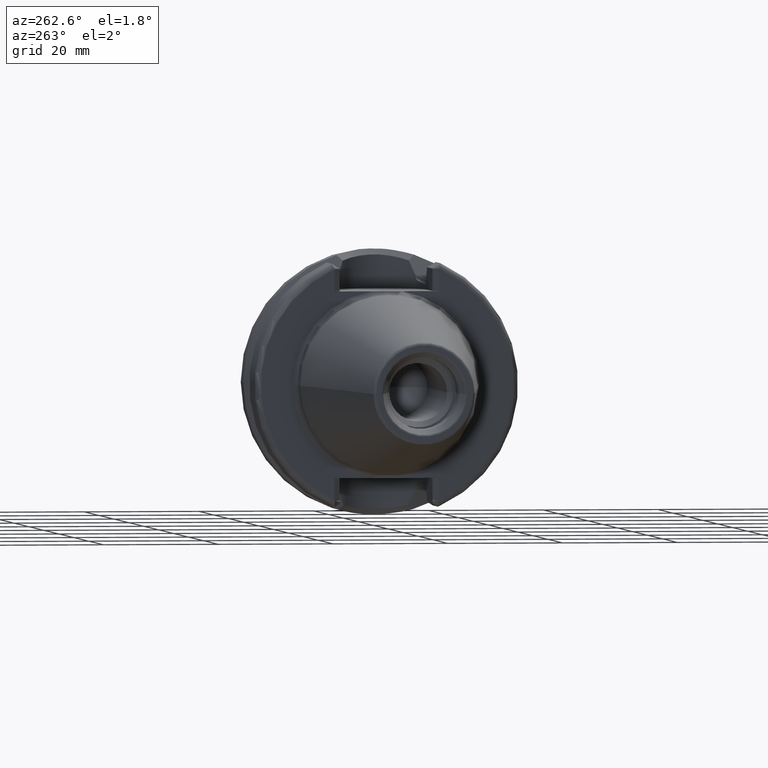
[diagram: clean part render]
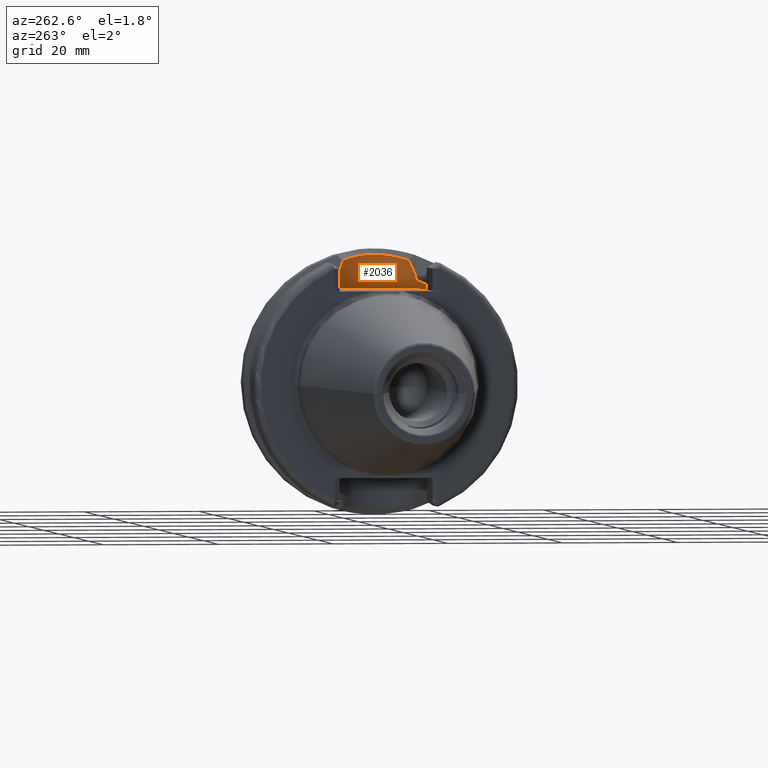
[diagram: same view with one face highlighted and labeled with its STEP entity id]
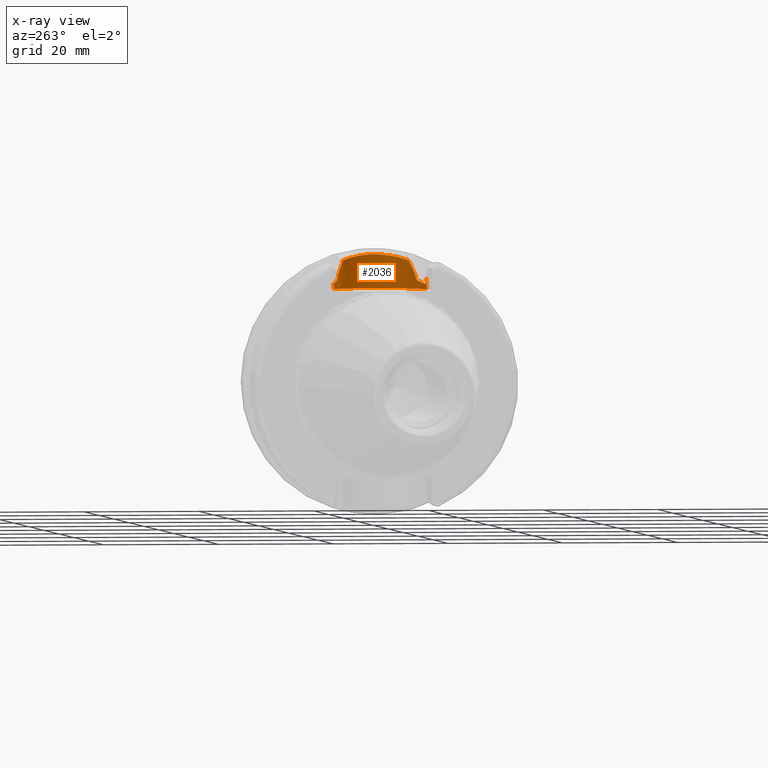
[diagram: x-ray of the same camera — body ghosted, the highlighted face saturated]
A machine part, auxiliary view. The second image highlights one B-rep face of the part: STEP entity #2036.
The next image is the same camera in x-ray: the body ghosted, the highlighted face saturated — about 0% of this face is hidden behind the body in this view.
In plain terms, the highlighted cylindrical surface (partial cylindrical patch) has radius 8.095 mm, axis along (0, 0, 1).
Its self-contained STEP definition (entity closure, byte-faithful):
#426=CARTESIAN_POINT('',(1.48875E1,7.183137806697E0,1.745474595203E1));
#427=CARTESIAN_POINT('',(1.461036501125E1,7.327142609799E0,1.739548376922E1));
#428=CARTESIAN_POINT('',(1.404920492439E1,7.578313334037E0,1.728803651447E1));
#429=CARTESIAN_POINT('',(1.318480954598E1,7.853460451226E0,1.716416337693E1));
#430=CARTESIAN_POINT('',(1.260448853217E1,7.969632667405E0,1.711001901788E1));
#431=CARTESIAN_POINT('',(1.23125E1,8.011817443627E0,1.709024301319E1));
#445=CARTESIAN_POINT('',(1.23125E1,-8.011817443627E0,1.709024301319E1));
#446=CARTESIAN_POINT('',(1.260448853217E1,-7.969632667405E0,1.711001901788E1));
#447=CARTESIAN_POINT('',(1.318480954598E1,-7.853460451226E0,1.716416337693E1));
#448=CARTESIAN_POINT('',(1.404920492439E1,-7.578313334037E0,1.728803651447E1));
#449=CARTESIAN_POINT('',(1.461036501125E1,-7.327142609799E0,1.739548376922E1));
#450=CARTESIAN_POINT('',(1.48875E1,-7.183137806697E0,1.745474595203E1));
#462=CARTESIAN_POINT('',(1.15625E1,-8.084736776791E0,1.788232804335E1));
#463=CARTESIAN_POINT('',(1.15625E1,-8.084736776791E0,1.781359730062E1));
#464=CARTESIAN_POINT('',(1.157743606483E1,-8.084008713788E0,1.768050385507E1));
#465=CARTESIAN_POINT('',(1.164702451808E1,-8.080196327678E0,1.748544180816E1));
#466=CARTESIAN_POINT('',(1.175695528065E1,-8.072931861565E0,1.732053584298E1));
#467=CARTESIAN_POINT('',(1.190535493158E1,-8.060719513235E0,1.718877876759E1));
#468=CARTESIAN_POINT('',(1.208874148617E1,-8.041810725138E0,1.710274000837E1));
#469=CARTESIAN_POINT('',(1.223427404262E1,-8.023119067298E0,1.708494487053E1));
#470=CARTESIAN_POINT('',(1.23125E1,-8.011817443627E0,1.709024301319E1));
#472=DIRECTION('',(0.E0,0.E0,1.E0));
#473=VECTOR('',#472,5.930451084079E-2);
#474=CARTESIAN_POINT('',(1.15625E1,-8.084736776791E0,1.788232804335E1));
#475=LINE('',#474,#473);
#476=CARTESIAN_POINT('',(1.1155E1,-8.095E0,1.870865212813E1));
#477=CARTESIAN_POINT('',(1.122320355344E1,-8.095E0,1.857993600428E1));
#478=CARTESIAN_POINT('',(1.135932539469E1,-8.093276332983E0,1.832336899895E1));
#479=CARTESIAN_POINT('',(1.149487170181E1,-8.088145487832E0,1.806857530355E1));
#480=CARTESIAN_POINT('',(1.15625E1,-8.084736776791E0,1.794163255419E1));
#482=DIRECTION('',(-2.499317727300E-14,0.E0,1.E0));
#483=VECTOR('',#482,2.558652128134E0);
#484=CARTESIAN_POINT('',(1.1155E1,-8.095E0,1.615E1));
#485=LINE('',#484,#483);
#486=CARTESIAN_POINT('',(1.15625E1,8.084736776791E0,1.794163255419E1));
#487=CARTESIAN_POINT('',(1.149487499855E1,8.088145321664E0,1.806856911534E1));
#488=CARTESIAN_POINT('',(1.135933197530E1,8.093276167010E0,1.832335661175E1));
#489=CARTESIAN_POINT('',(1.122320683725E1,8.095E0,1.857992980697E1));
#490=CARTESIAN_POINT('',(1.1155E1,8.095E0,1.870865212813E1));
#492=DIRECTION('',(0.E0,0.E0,1.E0));
#493=VECTOR('',#492,5.930451084079E-2);
#494=CARTESIAN_POINT('',(1.15625E1,8.084736776791E0,1.788232804335E1));
#495=LINE('',#494,#493);
#496=CARTESIAN_POINT('',(1.23125E1,8.011817443627E0,1.709024301319E1));
#497=CARTESIAN_POINT('',(1.223412033661E1,8.023141273833E0,1.708493446022E1));
#498=CARTESIAN_POINT('',(1.208831797670E1,8.041863754075E0,1.710280413489E1));
#499=CARTESIAN_POINT('',(1.190448533030E1,8.060802307436E0,1.718929563694E1));
#500=CARTESIAN_POINT('',(1.175607673362E1,8.072995940587E0,1.732154273478E1));
#501=CARTESIAN_POINT('',(1.164652640216E1,8.080224902242E0,1.748652481923E1));
#502=CARTESIAN_POINT('',(1.157735932460E1,8.084012208743E0,1.768105664530E1));
#503=CARTESIAN_POINT('',(1.15625E1,8.084736776791E0,1.781380327923E1));
#504=CARTESIAN_POINT('',(1.15625E1,8.084736776791E0,1.788232804335E1));
#506=CARTESIAN_POINT('',(1.56375E1,6.740639342822E0,1.843107176075E1));
#507=CARTESIAN_POINT('',(1.56375E1,6.740639342822E0,1.835223565973E1));
#508=CARTESIAN_POINT('',(1.561716943487E1,6.754255410016E0,1.819368091113E1));
#509=CARTESIAN_POINT('',(1.551365732971E1,6.821981327071E0,1.793606136907E1));
#510=CARTESIAN_POINT('',(1.534724837083E1,6.926179270024E0,1.770995100299E1));
#511=CARTESIAN_POINT('',(1.512702377767E1,7.055163449183E0,1.753487145852E1));
#512=CARTESIAN_POINT('',(1.497068250850E1,7.139914535566E0,1.747253359064E1));
#513=CARTESIAN_POINT('',(1.48875E1,7.183137806697E0,1.745474595203E1));
#515=DIRECTION('',(0.E0,-1.543465448134E-14,1.E0));
#516=VECTOR('',#515,5.754443164075E-2);
#517=CARTESIAN_POINT('',(1.56375E1,6.740639342822E0,1.843107176075E1));
#518=LINE('',#517,#516);
#519=CARTESIAN_POINT('',(1.685762423454E1,5.745354805374E0,2.102137764954E1));
#520=CARTESIAN_POINT('',(1.667158652396E1,5.930008876853E0,2.063686487213E1));
#521=CARTESIAN_POINT('',(1.628166811893E1,6.281182202369E0,1.982963416011E1));
#522=CARTESIAN_POINT('',(1.585764706705E1,6.594242365047E0,1.894784734616E1));
#523=CARTESIAN_POINT('',(1.56375E1,6.740639342822E0,1.848861619239E1));
#525=CARTESIAN_POINT('',(1.685762423454E1,5.745354805374E0,2.102137764954E1));
#526=CARTESIAN_POINT('',(1.697779770550E1,5.626136088152E0,2.106252297309E1));
#527=CARTESIAN_POINT('',(1.743755666385E1,5.140082156779E0,2.122428465158E1));
#528=CARTESIAN_POINT('',(1.812816032758E1,4.200121990197E0,2.149450952646E1));
#529=CARTESIAN_POINT('',(1.877276778562E1,2.867032923798E0,2.177159791335E1));
#530=CARTESIAN_POINT('',(1.916083388966E1,1.458814329773E0,2.194831858969E1));
#531=CARTESIAN_POINT('',(1.929118281632E1,3.703622594747E-2,2.200926032693E1));
#532=CARTESIAN_POINT('',(1.917392581487E1,-1.384592569817E0,2.195440356236E1));
#533=CARTESIAN_POINT('',(1.879919831505E1,-2.795658581172E0,2.178340212711E1));
#534=CARTESIAN_POINT('',(1.816770202464E1,-4.133576223624E0,2.151091403437E1));
#535=CARTESIAN_POINT('',(1.747159732381E1,-5.100439615657E0,2.123687604330E1));
#536=CARTESIAN_POINT('',(1.699614287571E1,-5.607914957456E0,2.106882289373E1));
#537=CARTESIAN_POINT('',(1.685763265114E1,-5.745346451357E0,2.102139504543E1));
#539=CARTESIAN_POINT('',(1.56375E1,-6.740639342822E0,1.848861619239E1));
#540=CARTESIAN_POINT('',(1.585767247034E1,-6.594225471952E0,1.894790033793E1));
#541=CARTESIAN_POINT('',(1.628171976104E1,-6.281140526994E0,1.982974129959E1));
#542=CARTESIAN_POINT('',(1.667161664884E1,-5.929979516978E0,2.063692715611E1));
#543=CARTESIAN_POINT('',(1.685763265114E1,-5.745346451357E0,2.102139504543E1));
#545=DIRECTION('',(0.E0,0.E0,1.E0));
#546=VECTOR('',#545,5.754443164074E-2);
#547=CARTESIAN_POINT('',(1.56375E1,-6.740639342822E0,1.843107176075E1));
#548=LINE('',#547,#546);
#549=CARTESIAN_POINT('',(1.48875E1,-7.183137806697E0,1.745474595203E1));
#550=CARTESIAN_POINT('',(1.497069018136E1,-7.139910548601E0,1.747253523139E1));
#551=CARTESIAN_POINT('',(1.512704810528E1,-7.055150292263E0,1.753488060805E1));
#552=CARTESIAN_POINT('',(1.534731396602E1,-6.926140003427E0,1.771001150802E1));
#553=CARTESIAN_POINT('',(1.551373210350E1,-6.821933350112E0,1.793618747596E1));
#554=CARTESIAN_POINT('',(1.561720305768E1,-6.754232932078E0,1.819382523887E1));
#555=CARTESIAN_POINT('',(1.56375E1,-6.740639342822E0,1.835229604119E1));
#556=CARTESIAN_POINT('',(1.56375E1,-6.740639342822E0,1.843107176075E1));
#562=CARTESIAN_POINT('',(1.1155E1,-8.095E0,1.870865212813E1));
#648=CARTESIAN_POINT('',(1.1155E1,8.095E0,1.870865212813E1));
#654=DIRECTION('',(0.E0,0.E0,1.E0));
#655=VECTOR('',#654,2.558652128134E0);
#656=CARTESIAN_POINT('',(1.1155E1,8.095E0,1.615E1));
#657=LINE('',#656,#655);
#682=CARTESIAN_POINT('',(1.1155E1,0.E0,1.615E1));
#683=DIRECTION('',(0.E0,0.E0,1.E0));
#684=DIRECTION('',(0.E0,-1.E0,0.E0));
#685=AXIS2_PLACEMENT_3D('',#682,#683,#684);
#1221=CARTESIAN_POINT('',(1.15625E1,-8.084736776791E0,1.788232804335E1));
#1223=VERTEX_POINT('',#1221);
#1224=CARTESIAN_POINT('',(1.15625E1,8.084736776791E0,1.788232804335E1));
#1226=VERTEX_POINT('',#1224);
#1229=CARTESIAN_POINT('',(1.23125E1,-8.011817443627E0,1.709024301319E1));
#1231=VERTEX_POINT('',#1229);
#1232=CARTESIAN_POINT('',(1.23125E1,8.011817443627E0,1.709024301319E1));
#1234=VERTEX_POINT('',#1232);
#1236=CARTESIAN_POINT('',(1.56375E1,-6.740639342822E0,1.843107176075E1));
#1238=VERTEX_POINT('',#1236);
#1241=CARTESIAN_POINT('',(1.48875E1,-7.183137806697E0,1.745474595203E1));
#1243=VERTEX_POINT('',#1241);
#1244=CARTESIAN_POINT('',(1.48875E1,7.183137806697E0,1.745474595203E1));
#1246=VERTEX_POINT('',#1244);
#1249=CARTESIAN_POINT('',(1.56375E1,6.740639342822E0,1.843107176075E1));
#1251=VERTEX_POINT('',#1249);
#1252=CARTESIAN_POINT('',(1.56375E1,6.740639342822E0,1.848861619239E1));
#1254=VERTEX_POINT('',#1252);
#1257=CARTESIAN_POINT('',(1.56375E1,-6.740639342822E0,1.848861619239E1));
#1259=VERTEX_POINT('',#1257);
#1261=CARTESIAN_POINT('',(1.15625E1,8.084736776791E0,1.794163255419E1));
#1263=VERTEX_POINT('',#1261);
#1264=CARTESIAN_POINT('',(1.15625E1,-8.084736776791E0,1.794163255419E1));
#1266=VERTEX_POINT('',#1264);
#1350=CARTESIAN_POINT('',(1.1155E1,-8.095E0,1.615E1));
#1351=CARTESIAN_POINT('',(1.1155E1,8.095E0,1.615E1));
#1352=VERTEX_POINT('',#1350);
#1353=VERTEX_POINT('',#1351);
#1366=VERTEX_POINT('',#648);
#1369=VERTEX_POINT('',#562);
#1370=VERTEX_POINT('',#543);
#1371=VERTEX_POINT('',#519);
#2005=CARTESIAN_POINT('',(1.1155E1,0.E0,1.615E1));
#2006=DIRECTION('',(0.E0,0.E0,1.E0));
#2007=DIRECTION('',(1.E0,0.E0,0.E0));
#2008=AXIS2_PLACEMENT_3D('',#2005,#2006,#2007);
#2009=CYLINDRICAL_SURFACE('',#2008,8.095E0);
#2010=ORIENTED_EDGE('',*,*,#1945,.F.);
#2011=ORIENTED_EDGE('',*,*,#1974,.F.);
#2012=ORIENTED_EDGE('',*,*,#1998,.T.);
#2013=ORIENTED_EDGE('',*,*,#1738,.F.);
#2015=ORIENTED_EDGE('',*,*,#2014,.F.);
#2017=ORIENTED_EDGE('',*,*,#2016,.T.);
#2019=ORIENTED_EDGE('',*,*,#2018,.T.);
#2020=ORIENTED_EDGE('',*,*,#1710,.F.);
#2021=ORIENTED_EDGE('',*,*,#1987,.F.);
#2022=ORIENTED_EDGE('',*,*,#1960,.F.);
#2023=ORIENTED_EDGE('',*,*,#1932,.F.);
#2024=ORIENTED_EDGE('',*,*,#1904,.F.);
#2025=ORIENTED_EDGE('',*,*,#1875,.T.);
#2027=ORIENTED_EDGE('',*,*,#2026,.F.);
#2029=ORIENTED_EDGE('',*,*,#2028,.T.);
#2031=ORIENTED_EDGE('',*,*,#2030,.F.);
#2032=ORIENTED_EDGE('',*,*,#1887,.F.);
#2033=ORIENTED_EDGE('',*,*,#1918,.F.);
#2034=EDGE_LOOP('',(#2010,#2011,#2012,#2013,#2015,#2017,#2019,#2020,#2021,#2022,
#2023,#2024,#2025,#2027,#2029,#2031,#2032,#2033));
#2035=FACE_OUTER_BOUND('',#2034,.F.);
#2036=ADVANCED_FACE('',(#2035),#2009,.F.);
#432=B_SPLINE_CURVE_WITH_KNOTS('',3,(#426,#427,#428,#429,#430,#431),
.UNSPECIFIED.,.F.,.F.,(4,1,1,4),(0.E0,3.333333333333E-1,6.666666666667E-1,1.E0),
.UNSPECIFIED.);
#451=B_SPLINE_CURVE_WITH_KNOTS('',3,(#445,#446,#447,#448,#449,#450),
.UNSPECIFIED.,.F.,.F.,(4,1,1,4),(0.E0,3.333333333333E-1,6.666666666667E-1,1.E0),
.UNSPECIFIED.);
#471=B_SPLINE_CURVE_WITH_KNOTS('',3,(#462,#463,#464,#465,#466,#467,#468,#469,
#470),.UNSPECIFIED.,.F.,.F.,(4,1,1,1,1,1,4),(0.E0,1.666666666667E-1,
3.333333333333E-1,5.E-1,6.666666666667E-1,8.333333333333E-1,1.E0),
.UNSPECIFIED.);
#481=B_SPLINE_CURVE_WITH_KNOTS('',3,(#476,#477,#478,#479,#480),.UNSPECIFIED.,
.F.,.F.,(4,1,4),(0.E0,5.E-1,1.E0),.UNSPECIFIED.);
#491=B_SPLINE_CURVE_WITH_KNOTS('',3,(#486,#487,#488,#489,#490),.UNSPECIFIED.,
.F.,.F.,(4,1,4),(0.E0,5.E-1,1.E0),.UNSPECIFIED.);
#505=B_SPLINE_CURVE_WITH_KNOTS('',3,(#496,#497,#498,#499,#500,#501,#502,#503,
#504),.UNSPECIFIED.,.F.,.F.,(4,1,1,1,1,1,4),(0.E0,1.666666666667E-1,
3.333333333333E-1,5.E-1,6.666666666667E-1,8.333333333333E-1,1.E0),
.UNSPECIFIED.);
#514=B_SPLINE_CURVE_WITH_KNOTS('',3,(#506,#507,#508,#509,#510,#511,#512,#513),
.UNSPECIFIED.,.F.,.F.,(4,1,1,1,1,4),(0.E0,2.E-1,4.E-1,6.E-1,8.E-1,1.E0),
.UNSPECIFIED.);
#524=B_SPLINE_CURVE_WITH_KNOTS('',3,(#519,#520,#521,#522,#523),.UNSPECIFIED.,
.F.,.F.,(4,1,4),(0.E0,5.E-1,1.E0),.UNSPECIFIED.);
#538=B_SPLINE_CURVE_WITH_KNOTS('',3,(#525,#526,#527,#528,#529,#530,#531,#532,
#533,#534,#535,#536,#537),.UNSPECIFIED.,.F.,.F.,(4,1,1,1,1,1,1,1,1,1,4),(0.E0,
3.884636510357E-2,1.533968406854E-1,2.679473162672E-1,3.824977918490E-1,
4.970482674308E-1,6.115987430126E-1,7.261492185944E-1,8.406996941763E-1,
9.552501697581E-1,1.E0),.UNSPECIFIED.);
#544=B_SPLINE_CURVE_WITH_KNOTS('',3,(#539,#540,#541,#542,#543),.UNSPECIFIED.,
.F.,.F.,(4,1,4),(0.E0,5.E-1,1.E0),.UNSPECIFIED.);
#557=B_SPLINE_CURVE_WITH_KNOTS('',3,(#549,#550,#551,#552,#553,#554,#555,#556),
.UNSPECIFIED.,.F.,.F.,(4,1,1,1,1,4),(0.E0,2.E-1,4.E-1,6.E-1,8.E-1,1.E0),
.UNSPECIFIED.);
#686=CIRCLE('',#685,8.095E0);
#1710=EDGE_CURVE('',#1263,#1366,#491,.T.);
#1738=EDGE_CURVE('',#1369,#1266,#481,.T.);
#1875=EDGE_CURVE('',#1251,#1254,#518,.T.);
#1887=EDGE_CURVE('',#1238,#1259,#548,.T.);
#1904=EDGE_CURVE('',#1251,#1246,#514,.T.);
#1918=EDGE_CURVE('',#1243,#1238,#557,.T.);
#1932=EDGE_CURVE('',#1246,#1234,#432,.T.);
#1945=EDGE_CURVE('',#1231,#1243,#451,.T.);
#1960=EDGE_CURVE('',#1234,#1226,#505,.T.);
#1974=EDGE_CURVE('',#1223,#1231,#471,.T.);
#1987=EDGE_CURVE('',#1226,#1263,#495,.T.);
#1998=EDGE_CURVE('',#1223,#1266,#475,.T.);
#2014=EDGE_CURVE('',#1352,#1369,#485,.T.);
#2016=EDGE_CURVE('',#1352,#1353,#686,.T.);
#2018=EDGE_CURVE('',#1353,#1366,#657,.T.);
#2026=EDGE_CURVE('',#1371,#1254,#524,.T.);
#2028=EDGE_CURVE('',#1371,#1370,#538,.T.);
#2030=EDGE_CURVE('',#1259,#1370,#544,.T.);